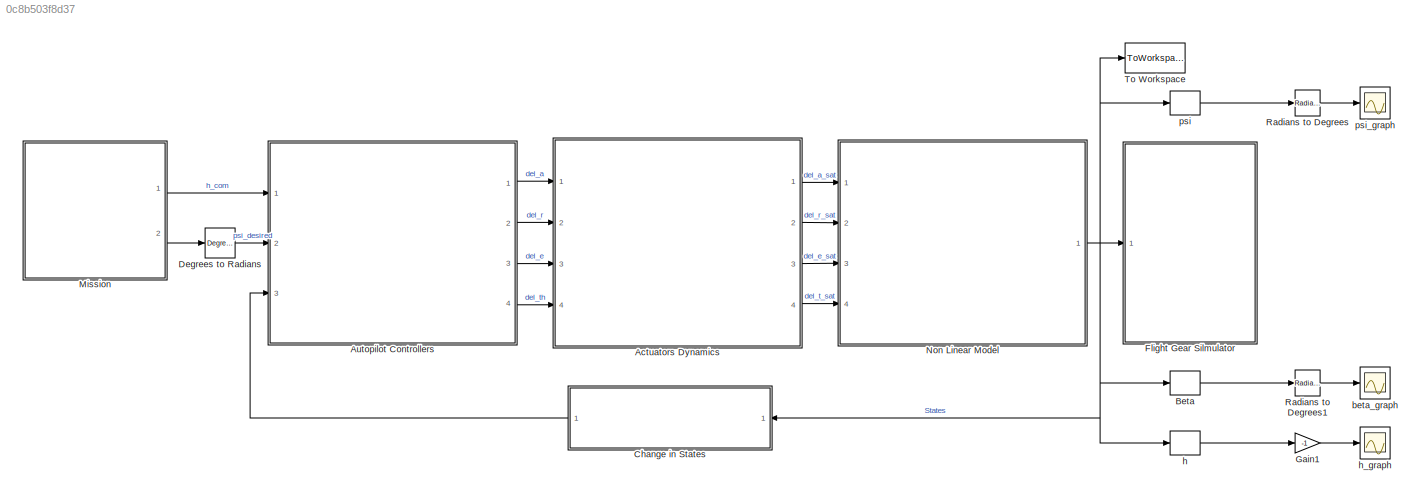
MODEL slx_0c8b503f8d37
KIND model
CONFIG AbsTol = auto
CONFIG EnableMultiTasking = off
CONFIG FixedStep = 0.01
CONFIG MaxStep = auto
CONFIG MinStep = auto
CONFIG RelTol = 1e-3
CONFIG SampleTimeConstraint = Unconstrained
CONFIG SolverName = ode4
CONFIG StartTime = 0.0
CONFIG StopTime = 1500
WORKSPACE source: external: MAT-File  (data not in archive)
BLOCK [ModelReference] Actuators Dynamics
  ModelNameDialog = Actuators_Dynamics.slx
  ModelReferenceVersion = 5.3
  Ports = [4, 4]
BLOCK [ModelReference] Autopilot Controllers
  ModelNameDialog = Autopilot_Controllers.slx
  ModelReferenceVersion = 5.6
  Ports = [3, 4]
BLOCK [Selector] Beta
  IndexOptions = Index vector (dialog)
  Indices = 14
  InputPortWidth = 15
  OutputSizes = 1
  Ports = [1, 1]
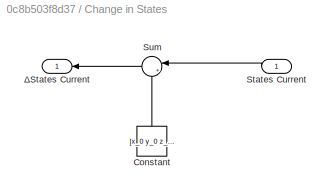
BLOCK [SubSystem] Change in States
  NameLocation = top
  Ports = [1, 1]
  RequestExecContextInheritance = off
BLOCK [Constant] Change in States/Constant
  NameLocation = right
  Value = [x_0 y_0 z_0 phi_0 theta_0 psi_0 u_0 v_0 w_0 p_0 q_0 r_0 0 0 Vto]
BLOCK [Inport] Change in States/States Current
  NameLocation = top
BLOCK [Sum] Change in States/Sum
  Inputs = |+-
  NameLocation = top
  Ports = [2, 1]
BLOCK [Outport] Change in States/ΔStates Current
  NameLocation = top
BLOCK [Reference] Degrees to Radians  REF=simulink_extras/Transformations/Degrees to
Radians
  Ports = [1, 1]
  SourceBlock = simulink_extras/Transformations/Degrees to\nRadians
  SourceProductBaseCode = SL
  SourceType = DegreesToRadians
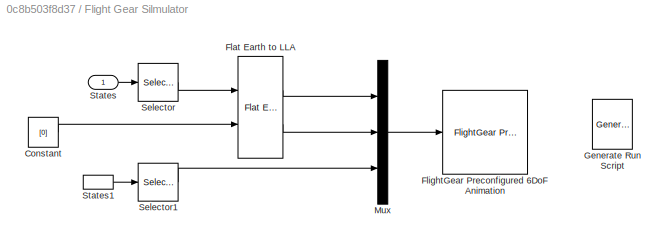
BLOCK [SubSystem] Flight Gear Silmulator
  Ports = [1]
  RequestExecContextInheritance = off
BLOCK [Constant] Flight Gear Silmulator/Constant
  Value = [0]
BLOCK [Reference] Flight Gear Silmulator/Flat Earth to LLA  REF=aerolibtransform2/Flat Earth to LLA
  Ports = [2, 2]
  SourceBlock = aerolibtransform2/Flat Earth to LLA
  SourceProductBaseCode = AE
  SourceType = Flat Earth to LLA
BLOCK [Reference] Flight Gear Silmulator/FlightGear Preconfigured 6DoF Animation  REF=aerolibfltsims/FlightGear
Preconfigured
6DoF Animation
  AttributesFormatString = Version Selected: %<xFlightGearVersion>
  Ports = [1]
  SourceBlock = aerolibfltsims/FlightGear\nPreconfigured\n6DoF Animation
  SourceProductBaseCode = AE
  SourceType = FlightGearQuick6DoFAnimation
BLOCK [Reference] Flight Gear Silmulator/Generate Run Script  REF=aerolibfltsims/Generate
Run Script
  Ports = []
  SourceBlock = aerolibfltsims/Generate\nRun Script
  SourceProductBaseCode = AE
  SourceType = Generate FlightGear Run Script
BLOCK [Mux] Flight Gear Silmulator/Mux
  DisplayOption = bar
  Inputs = 3
  Ports = [3, 1]
BLOCK [Selector] Flight Gear Silmulator/Selector
  IndexOptions = Index vector (dialog)
  Indices = [1 2 3]
  InputPortWidth = 15
  OutputSizes = 1
  Ports = [1, 1]
BLOCK [Selector] Flight Gear Silmulator/Selector1
  IndexOptions = Index vector (dialog)
  Indices = [4 5 6]
  InputPortWidth = 15
  OutputSizes = 1
  Ports = [1, 1]
BLOCK [Inport] Flight Gear Silmulator/States
BLOCK [InportShadow] Flight Gear Silmulator/States1
BLOCK [Gain] Gain1
  Gain = -1
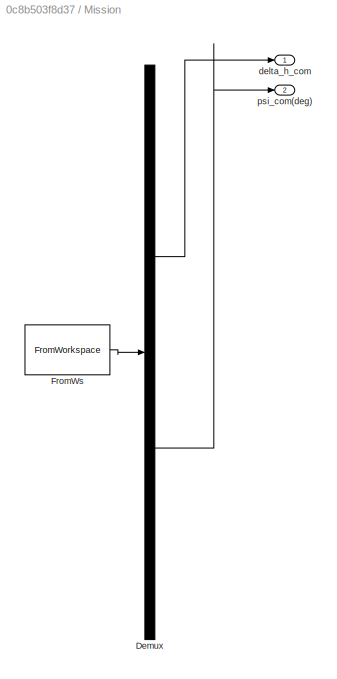
BLOCK [SubSystem] Mission
  ClipboardFcn = sigbuilder_block('clipboard');
  CloseFcn = sigbuilder_block('close');
  ContinueFcn = sigbuilder_block('continue');
  CopyFcn = sigbuilder_block('copy');
  DeleteFcn = sigbuilder_block('delete');
  LoadFcn = sigbuilder_block('load');
  MaskHideContents = on
  ModelCloseFcn = sigbuilder_block('modelClose');
  NameChangeFcn = sigbuilder_block('namechange');
  OpenFcn = sigbuilder_block('open',[265.5 96 689 362.5 ]);
  PauseFcn = sigbuilder_block('pause');
  Ports = [0, 2]
  PreSaveFcn = sigbuilder_block('preSave');
  RequestExecContextInheritance = off
  StartFcn = sigbuilder_block('start');
  StopFcn = sigbuilder_block('stop');
  Tag = STV Subsys
BLOCK [Demux] Mission/Demux
  DisplayOption = none
  Outputs = 2
  Ports = [1, 2]
  Tag = STV Demux
BLOCK [FromWorkspace] Mission/FromWs
  Tag = STV FromWs
  VariableName = tuvar
BLOCK [Outport] Mission/delta_h_com
  Tag = STV Outport
BLOCK [Outport] Mission/psi_com(deg)
  Port = 2
  Tag = STV Outport
BLOCK [ModelReference] Non Linear Model
  ModelNameDialog = Non_Linear_Simulator_MQ_9.slx
  ModelReferenceVersion = 5.2
  Ports = [4, 1]
BLOCK [Reference] Radians to Degrees  REF=simulink_extras/Transformations/Radians
to Degrees
  Ports = [1, 1]
  SourceBlock = simulink_extras/Transformations/Radians\nto Degrees
  SourceProductBaseCode = SL
  SourceType = RadiansToDegrees
BLOCK [Reference] Radians to Degrees1  REF=simulink_extras/Transformations/Radians
to Degrees
  Ports = [1, 1]
  SourceBlock = simulink_extras/Transformations/Radians\nto Degrees
  SourceProductBaseCode = SL
  SourceType = RadiansToDegrees
BLOCK [ToWorkspace] To Workspace
  FixptAsFi = on
  MaxDataPoints = inf
  Ports = [1]
  SampleTime = -1
  SaveFormat = Timeseries
  VariableName = states
BLOCK [Scope] beta_graph
  Floating = off
  NumInputPorts = 1
  Ports = [1]
  ScopeSpecificationString = Simulink.scopes.TimeScopeBlockCfg('CurrentConfiguration', extmgr.ConfigurationSet(extmgr.Configuration('Core','General UI',true),extmgr.Configuration('Core','Source UI',true),extmgr.Configuration('Sources','WiredSimulink',true),extmgr.Configuration('Visuals','Time Domain',true,'SerializedDisplays',{struct('MinYLimReal','-0.69192','MaxYLimReal','2.48345','YLabelReal','','MinYLimMag','0.00000','MaxY...<+1479ch>
BLOCK [Selector] h
  IndexOptions = Index vector (dialog)
  Indices = 3
  InputPortWidth = 15
  OutputSizes = 1
  Ports = [1, 1]
BLOCK [Scope] h_graph
  Floating = off
  NumInputPorts = 1
  Ports = [1]
  ScopeSpecificationString = Simulink.scopes.TimeScopeBlockCfg('CurrentConfiguration', extmgr.ConfigurationSet(extmgr.Configuration('Core','General UI',true),extmgr.Configuration('Core','Source UI',true),extmgr.Configuration('Sources','WiredSimulink',true,'DataLoggingVariableName','ScopeData2'),extmgr.Configuration('Visuals','Time Domain',true,'SerializedDisplays',{struct('MinYLimReal','-1262.57299','MaxYLimReal','11363.10987...<+1483ch>
BLOCK [Selector] psi
  IndexOptions = Index vector (dialog)
  Indices = 6
  InputPortWidth = 15
  OutputSizes = 1
  Ports = [1, 1]
BLOCK [Scope] psi_graph
  Floating = off
  NumInputPorts = 1
  Ports = [1]
  ScopeSpecificationString = Simulink.scopes.TimeScopeBlockCfg('CurrentConfiguration', extmgr.ConfigurationSet(extmgr.Configuration('Core','General UI',true),extmgr.Configuration('Core','Source UI',true),extmgr.Configuration('Sources','WiredSimulink',true,'DataLoggingVariableName','ScopeData1'),extmgr.Configuration('Visuals','Time Domain',true,'SerializedDisplays',{struct('MinYLimReal','-224.98542','MaxYLimReal','224.99227','...<+1483ch>
LINE Actuators Dynamics:1 -> Non Linear Model:1
LINE Actuators Dynamics:2 -> Non Linear Model:2
LINE Actuators Dynamics:3 -> Non Linear Model:3
LINE Actuators Dynamics:4 -> Non Linear Model:4
LINE Autopilot Controllers:1 -> Actuators Dynamics:1
LINE Autopilot Controllers:2 -> Actuators Dynamics:2
LINE Autopilot Controllers:3 -> Actuators Dynamics:3
LINE Autopilot Controllers:4 -> Actuators Dynamics:4
LINE Beta:1 -> Radians to Degrees1:1
LINE Change in States/Constant:1 -> Change in States/Sum:2
LINE Change in States/States Current:1 -> Change in States/Sum:1
LINE Change in States/Sum:1 -> Change in States/ΔStates Current:1
LINE Change in States:1 -> Autopilot Controllers:3
LINE Degrees to Radians:1 -> Autopilot Controllers:2
LINE Flight Gear Silmulator/Constant:1 -> Flight Gear Silmulator/Flat Earth to LLA:2
LINE Flight Gear Silmulator/Flat Earth to LLA:1 -> Flight Gear Silmulator/Mux:1
LINE Flight Gear Silmulator/Flat Earth to LLA:2 -> Flight Gear Silmulator/Mux:2
LINE Flight Gear Silmulator/Mux:1 -> Flight Gear Silmulator/FlightGear Preconfigured 6DoF Animation:1
LINE Flight Gear Silmulator/Selector1:1 -> Flight Gear Silmulator/Mux:3
LINE Flight Gear Silmulator/Selector:1 -> Flight Gear Silmulator/Flat Earth to LLA:1
LINE Flight Gear Silmulator/States1:1 -> Flight Gear Silmulator/Selector1:1
LINE Flight Gear Silmulator/States:1 -> Flight Gear Silmulator/Selector:1
LINE Gain1:1 -> h_graph:1
LINE Mission:1 -> Autopilot Controllers:1
LINE Mission:2 -> Degrees to Radians:1
NET Non Linear Model:1 -> Beta:1, Change in States:1, Flight Gear Silmulator:1, To Workspace:1, h:1, psi:1
LINE Radians to Degrees1:1 -> beta_graph:1
LINE Radians to Degrees:1 -> psi_graph:1
LINE h:1 -> Gain1:1
LINE psi:1 -> Radians to Degrees:1
note: NET lines group one-source signal fan-out (src -> all destinations, sorted); 1:1 wires keep LINE
